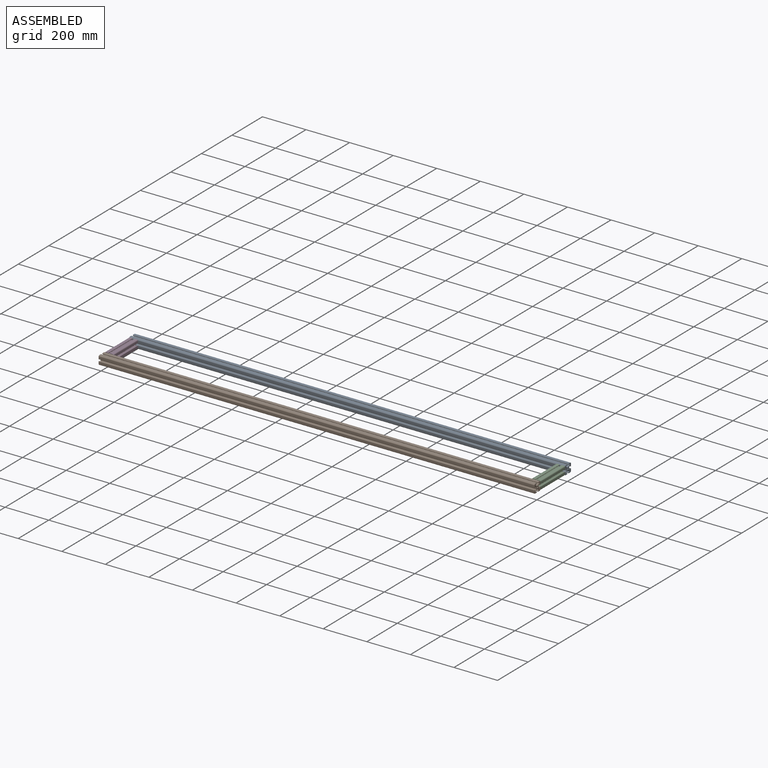
[diagram: assembled view]
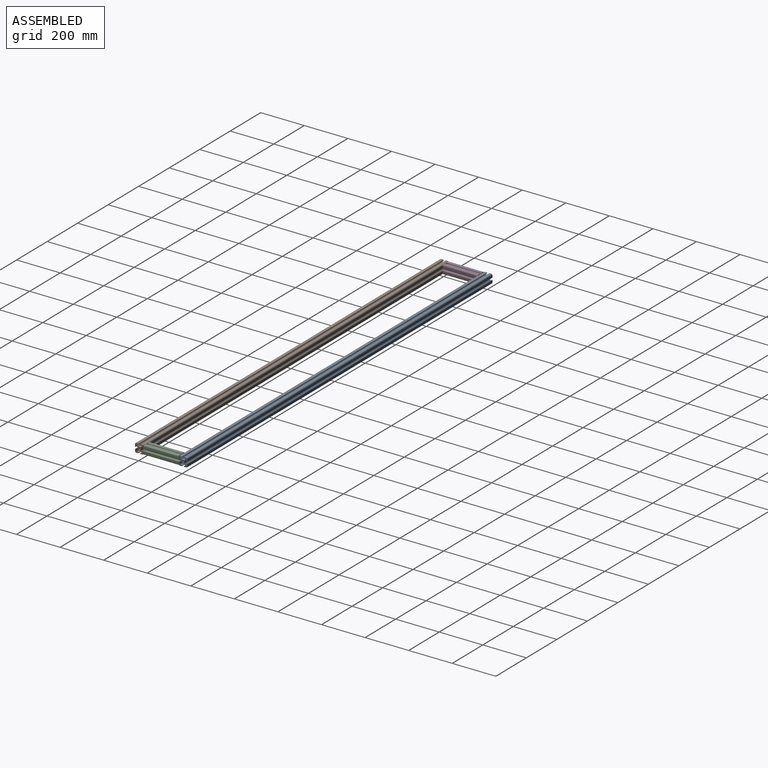
[diagram: assembled view, second angle]
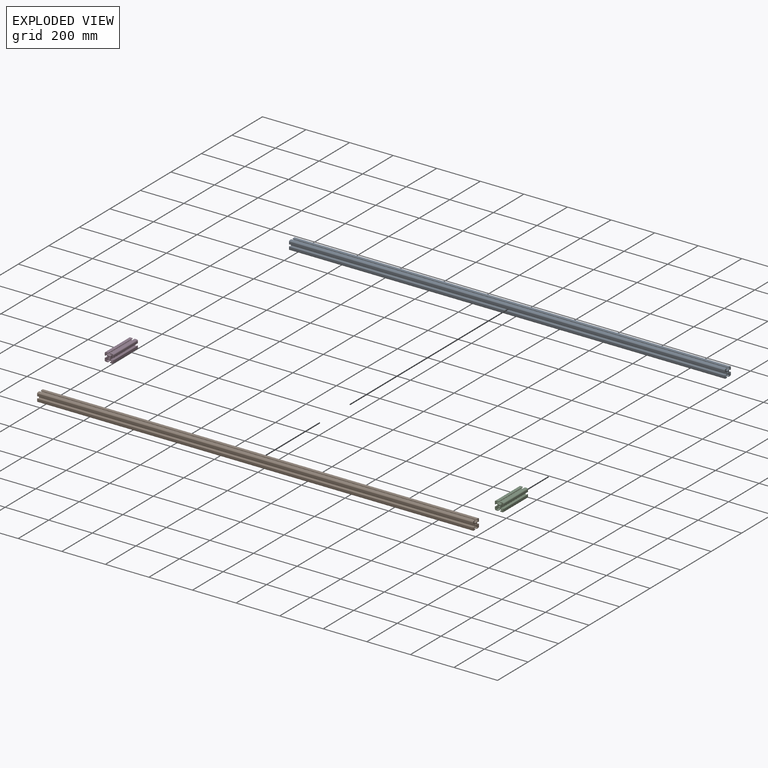
[diagram: exploded view]
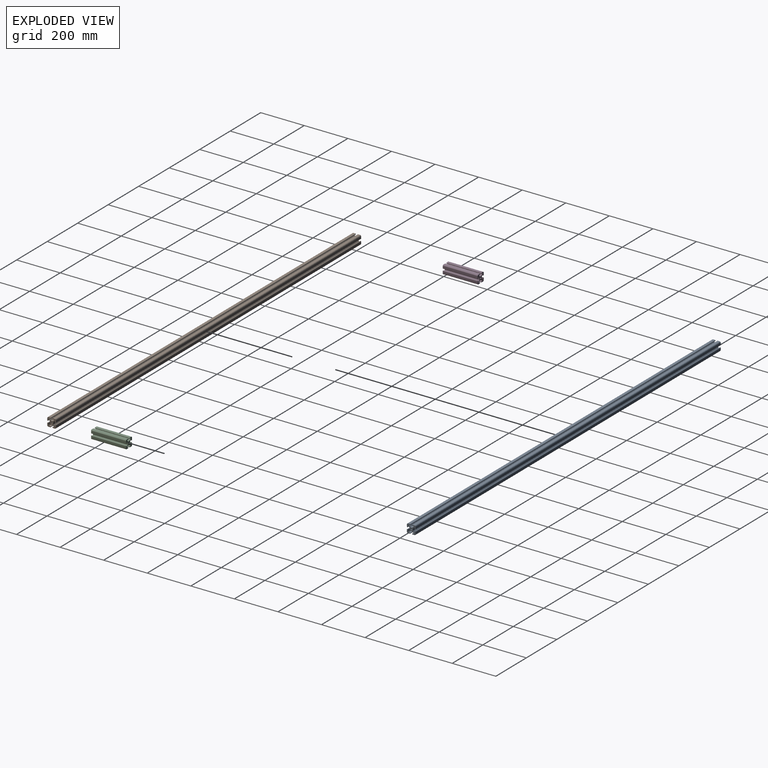
[diagram: exploded view, second angle]
ASSEMBLY  parts=4 mates=3
PART A: 59 faces, bbox 2000x40x40 mm
  f0: plane 2000x6.57mm, normal (0,1,0), area 13130.6mm2, adj f1,f37,f38,f40
  f1: plane 2000x8mm, normal (0,-0.71,-0.71), area 22613.3mm2, adj f0,f2,f37,f38
  f2: plane 2000x9.26mm, normal (0,-1,0), area 18521.2mm2, adj f1,f3,f37,f38
  f3: plane 2000x8mm, normal (0,-0.71,0.71), area 22613.3mm2, adj f2,f4,f37,f38
  f4: plane 2000x6.57mm, normal (0,1,0), area 13130.6mm2, adj f3,f37,f38,f43
  f5: plane 2000x0.32mm, normal (0,0,1), area 640mm2, adj f37,f38,f43,f44
  f6: plane 2000x8.94mm, normal (0,-1,0), area 17880mm2, adj f37,f38,f44,f56
  f7: plane 2000x8.94mm, normal (0,0,-1), area 17880mm2, adj f37,f38,f45,f56
  f8: plane 2000x0.32mm, normal (0,1,0), area 640mm2, adj f37,f38,f45,f46
  f9: plane 2000x6.57mm, normal (0,0,1), area 13130.6mm2, adj f10,f37,f38,f46
  f10: plane 2000x8mm, normal (0,0.71,-0.71), area 22613.3mm2, adj f9,f11,f37,f38
  f11: plane 2000x9.26mm, normal (0,0,-1), area 18521.2mm2, adj f10,f12,f37,f38
  f12: plane 2000x8mm, normal (0,-0.71,-0.71), area 22613.3mm2, adj f11,f13,f37,f38
  f13: plane 2000x6.57mm, normal (0,0,1), area 13130.6mm2, adj f12,f37,f38,f53
  f14: plane 2000x0.32mm, normal (0,-1,0), area 640mm2, adj f37,f38,f53,f54
  f15: plane 2000x8.94mm, normal (0,0,-1), area 17880mm2, adj f37,f38,f54,f58
  f16: plane 2000x8.94mm, normal (0,1,0), area 17880mm2, adj f37,f38,f52,f58
  f17: plane 2000x0.32mm, normal (0,0,1), area 640mm2, adj f37,f38,f51,f52
  f18: plane 2000x6.57mm, normal (0,-1,0), area 13130.6mm2, adj f19,f37,f38,f51
  f19: plane 2000x8mm, normal (0,0.71,0.71), area 22613.3mm2, adj f18,f20,f37,f38
  f20: plane 2000x9.26mm, normal (0,1,0), area 18521.2mm2, adj f19,f21,f37,f38
  f21: plane 2000x8mm, normal (0,0.71,-0.71), area 22613.3mm2, adj f20,f22,f37,f38
  f22: plane 2000x6.57mm, normal (0,-1,0), area 13130.6mm2, adj f21,f37,f38,f47
  f23: plane 2000x0.32mm, normal (0,0,-1), area 640mm2, adj f37,f38,f47,f48
  f24: plane 2000x8.94mm, normal (0,1,0), area 17880mm2, adj f37,f38,f48,f57
  f25: plane 2000x8.94mm, normal (0,0,1), area 17880mm2, adj f37,f38,f49,f57
  f26: plane 2000x0.32mm, normal (0,-1,0), area 640mm2, adj f37,f38,f49,f50
  f27: plane 2000x6.57mm, normal (0,0,-1), area 13130.6mm2, adj f28,f37,f38,f50
  f28: plane 2000x8mm, normal (0,-0.71,0.71), area 22613.3mm2, adj f27,f29,f37,f38
  f29: plane 2000x9.26mm, normal (0,0,1), area 18521.2mm2, adj f28,f30,f37,f38
  f30: plane 2000x8mm, normal (0,0.71,0.71), area 22613.3mm2, adj f29,f31,f37,f38
  f31: plane 2000x6.57mm, normal (0,0,-1), area 13130.6mm2, adj f30,f37,f38,f41
  f32: plane 2000x0.32mm, normal (0,1,0), area 640mm2, adj f37,f38,f41,f42
  f33: plane 2000x8.94mm, normal (0,0,1), area 17880mm2, adj f37,f38,f42,f55
  f34: plane 2000x8.94mm, normal (0,-1,0), area 17880mm2, adj f37,f38,f39,f55
  f35: plane 2000x0.32mm, normal (0,0,-1), area 640mm2, adj f37,f38,f39,f40
  f36: cylinder r=3.4mm len=2000mm, axis (-1,0,0), area 42725.7mm2, adj f37,f38
  f37: plane 40x40mm, normal (1,0,0), area 836.3mm2, adj f0,f1,f2,f3,f4,f5,f6,f7
  f38: plane 40x40mm, normal (-1,0,0), area 836.3mm2, adj f0,f1,f2,f3,f4,f5,f6,f7
  f39: cylinder r=2mm len=2000mm, axis (-1,0,0), area 6283.2mm2, adj f34,f35,f37,f38
  f40: cylinder r=2mm len=2000mm, axis (-1,0,0), area 6283.2mm2, adj f0,f35,f37,f38
  f41: cylinder r=2mm len=2000mm, axis (-1,0,0), area 6283.2mm2, adj f31,f32,f37,f38
  f42: cylinder r=2mm len=2000mm, axis (-1,0,0), area 6283.2mm2, adj f32,f33,f37,f38
  f43: cylinder r=2mm len=2000mm, axis (-1,0,0), area 6283.2mm2, adj f4,f5,f37,f38
  f44: cylinder r=2mm len=2000mm, axis (1,0,0), area 6283.2mm2, adj f5,f6,f37,f38
  f45: cylinder r=2mm len=2000mm, axis (-1,0,0), area 6283.2mm2, adj f7,f8,f37,f38
  f46: cylinder r=2mm len=2000mm, axis (-1,0,0), area 6283.2mm2, adj f8,f9,f37,f38
  f47: cylinder r=2mm len=2000mm, axis (-1,0,0), area 6283.2mm2, adj f22,f23,f37,f38
  f48: cylinder r=2mm len=2000mm, axis (1,0,0), area 6283.2mm2, adj f23,f24,f37,f38
  f49: cylinder r=2mm len=2000mm, axis (1,0,0), area 6283.2mm2, adj f25,f26,f37,f38
  f50: cylinder r=2mm len=2000mm, axis (-1,0,0), area 6283.2mm2, adj f26,f27,f37,f38
  f51: cylinder r=2mm len=2000mm, axis (-1,0,0), area 6283.2mm2, adj f17,f18,f37,f38
  f52: cylinder r=2mm len=2000mm, axis (-1,0,0), area 6283.2mm2, adj f16,f17,f37,f38
  f53: cylinder r=2mm len=2000mm, axis (-1,0,0), area 6283.2mm2, adj f13,f14,f37,f38
  f54: cylinder r=2mm len=2000mm, axis (1,0,0), area 6283.2mm2, adj f14,f15,f37,f38
  f55: cylinder r=5mm len=2000mm, axis (1,0,0), area 15708mm2, adj f33,f34,f37,f38
  f56: cylinder r=5mm len=2000mm, axis (-1,0,0), area 15708mm2, adj f6,f7,f37,f38
  f57: cylinder r=5mm len=2000mm, axis (1,0,0), area 15708mm2, adj f24,f25,f37,f38
  f58: cylinder r=5mm len=2000mm, axis (-1,0,0), area 15708mm2, adj f15,f16,f37,f38
PART B: same geometry as A
PART C: 59 faces, bbox 160x40x40 mm
  f0: plane 160x6.57mm, normal (0,1,0), area 1050.4mm2, adj f1,f37,f38,f40
  f1: plane 160x8mm, normal (0,-0.71,-0.71), area 1809.1mm2, adj f0,f2,f37,f38
  f2: plane 160x9.26mm, normal (0,-1,0), area 1481.7mm2, adj f1,f3,f37,f38
  f3: plane 160x8mm, normal (0,-0.71,0.71), area 1809.1mm2, adj f2,f4,f37,f38
  f4: plane 160x6.57mm, normal (0,1,0), area 1050.4mm2, adj f3,f37,f38,f43
  f5: plane 160x0.32mm, normal (0,0,1), area 51.2mm2, adj f37,f38,f43,f44
  f6: plane 160x8.94mm, normal (0,-1,0), area 1430.4mm2, adj f37,f38,f44,f56
  f7: plane 160x8.94mm, normal (0,0,-1), area 1430.4mm2, adj f37,f38,f45,f56
  f8: plane 160x0.32mm, normal (0,1,0), area 51.2mm2, adj f37,f38,f45,f46
  f9: plane 160x6.57mm, normal (0,0,1), area 1050.4mm2, adj f10,f37,f38,f46
  f10: plane 160x8mm, normal (0,0.71,-0.71), area 1809.1mm2, adj f9,f11,f37,f38
  f11: plane 160x9.26mm, normal (0,0,-1), area 1481.7mm2, adj f10,f12,f37,f38
  f12: plane 160x8mm, normal (0,-0.71,-0.71), area 1809.1mm2, adj f11,f13,f37,f38
  f13: plane 160x6.57mm, normal (0,0,1), area 1050.4mm2, adj f12,f37,f38,f53
  f14: plane 160x0.32mm, normal (0,-1,0), area 51.2mm2, adj f37,f38,f53,f54
  f15: plane 160x8.94mm, normal (0,0,-1), area 1430.4mm2, adj f37,f38,f54,f58
  f16: plane 160x8.94mm, normal (0,1,0), area 1430.4mm2, adj f37,f38,f52,f58
  f17: plane 160x0.32mm, normal (0,0,1), area 51.2mm2, adj f37,f38,f51,f52
  f18: plane 160x6.57mm, normal (0,-1,0), area 1050.4mm2, adj f19,f37,f38,f51
  f19: plane 160x8mm, normal (0,0.71,0.71), area 1809.1mm2, adj f18,f20,f37,f38
  f20: plane 160x9.26mm, normal (0,1,0), area 1481.7mm2, adj f19,f21,f37,f38
  f21: plane 160x8mm, normal (0,0.71,-0.71), area 1809.1mm2, adj f20,f22,f37,f38
  f22: plane 160x6.57mm, normal (0,-1,0), area 1050.4mm2, adj f21,f37,f38,f47
  f23: plane 160x0.32mm, normal (0,0,-1), area 51.2mm2, adj f37,f38,f47,f48
  f24: plane 160x8.94mm, normal (0,1,0), area 1430.4mm2, adj f37,f38,f48,f57
  f25: plane 160x8.94mm, normal (0,0,1), area 1430.4mm2, adj f37,f38,f49,f57
  f26: plane 160x0.32mm, normal (0,-1,0), area 51.2mm2, adj f37,f38,f49,f50
  f27: plane 160x6.57mm, normal (0,0,-1), area 1050.4mm2, adj f28,f37,f38,f50
  f28: plane 160x8mm, normal (0,-0.71,0.71), area 1809.1mm2, adj f27,f29,f37,f38
  f29: plane 160x9.26mm, normal (0,0,1), area 1481.7mm2, adj f28,f30,f37,f38
  f30: plane 160x8mm, normal (0,0.71,0.71), area 1809.1mm2, adj f29,f31,f37,f38
  f31: plane 160x6.57mm, normal (0,0,-1), area 1050.4mm2, adj f30,f37,f38,f41
  f32: plane 160x0.32mm, normal (0,1,0), area 51.2mm2, adj f37,f38,f41,f42
  f33: plane 160x8.94mm, normal (0,0,1), area 1430.4mm2, adj f37,f38,f42,f55
  f34: plane 160x8.94mm, normal (0,-1,0), area 1430.4mm2, adj f37,f38,f39,f55
  f35: plane 160x0.32mm, normal (0,0,-1), area 51.2mm2, adj f37,f38,f39,f40
  f36: cylinder r=3.4mm len=160mm, axis (-1,0,0), area 3418.1mm2, adj f37,f38
  f37: plane 40x40mm, normal (1,0,0), area 836.3mm2, adj f0,f1,f2,f3,f4,f5,f6,f7
  f38: plane 40x40mm, normal (-1,0,0), area 836.3mm2, adj f0,f1,f2,f3,f4,f5,f6,f7
  f39: cylinder r=2mm len=160mm, axis (-1,0,0), area 502.7mm2, adj f34,f35,f37,f38
  f40: cylinder r=2mm len=160mm, axis (-1,0,0), area 502.7mm2, adj f0,f35,f37,f38
  f41: cylinder r=2mm len=160mm, axis (-1,0,0), area 502.7mm2, adj f31,f32,f37,f38
  f42: cylinder r=2mm len=160mm, axis (-1,0,0), area 502.7mm2, adj f32,f33,f37,f38
  f43: cylinder r=2mm len=160mm, axis (-1,0,0), area 502.7mm2, adj f4,f5,f37,f38
  f44: cylinder r=2mm len=160mm, axis (1,0,0), area 502.7mm2, adj f5,f6,f37,f38
  f45: cylinder r=2mm len=160mm, axis (-1,0,0), area 502.7mm2, adj f7,f8,f37,f38
  f46: cylinder r=2mm len=160mm, axis (-1,0,0), area 502.7mm2, adj f8,f9,f37,f38
  f47: cylinder r=2mm len=160mm, axis (-1,0,0), area 502.7mm2, adj f22,f23,f37,f38
  f48: cylinder r=2mm len=160mm, axis (1,0,0), area 502.7mm2, adj f23,f24,f37,f38
  f49: cylinder r=2mm len=160mm, axis (1,0,0), area 502.7mm2, adj f25,f26,f37,f38
  f50: cylinder r=2mm len=160mm, axis (-1,0,0), area 502.7mm2, adj f26,f27,f37,f38
  f51: cylinder r=2mm len=160mm, axis (-1,0,0), area 502.7mm2, adj f17,f18,f37,f38
  f52: cylinder r=2mm len=160mm, axis (-1,0,0), area 502.7mm2, adj f16,f17,f37,f38
  f53: cylinder r=2mm len=160mm, axis (-1,0,0), area 502.7mm2, adj f13,f14,f37,f38
  f54: cylinder r=2mm len=160mm, axis (1,0,0), area 502.7mm2, adj f14,f15,f37,f38
  f55: cylinder r=5mm len=160mm, axis (1,0,0), area 1256.6mm2, adj f33,f34,f37,f38
  f56: cylinder r=5mm len=160mm, axis (-1,0,0), area 1256.6mm2, adj f6,f7,f37,f38
  f57: cylinder r=5mm len=160mm, axis (1,0,0), area 1256.6mm2, adj f24,f25,f37,f38
  f58: cylinder r=5mm len=160mm, axis (-1,0,0), area 1256.6mm2, adj f15,f16,f37,f38
PART D: same geometry as C
PLACE A at identity
PLACE B t=(0,-200,0)mm
PLACE C rot(axis=(0,0,-1),90deg) t=(1975.94,-15.94,0)mm
PLACE D rot(axis=(0,0,-1),90deg) t=(15.94,-15.94,0)mm
MATE fastened B.f16 <-> D.f37  axis (0,1,0) through (0,-175.94,-15.18)mm
MATE fastened C.f38 <-> A.f6  axis (0,1,0) through (2000,-15.94,-15.18)mm
MATE fastened D.f38 <-> A.f34  axis (0,1,0) through (0,-15.94,5.88)mm
